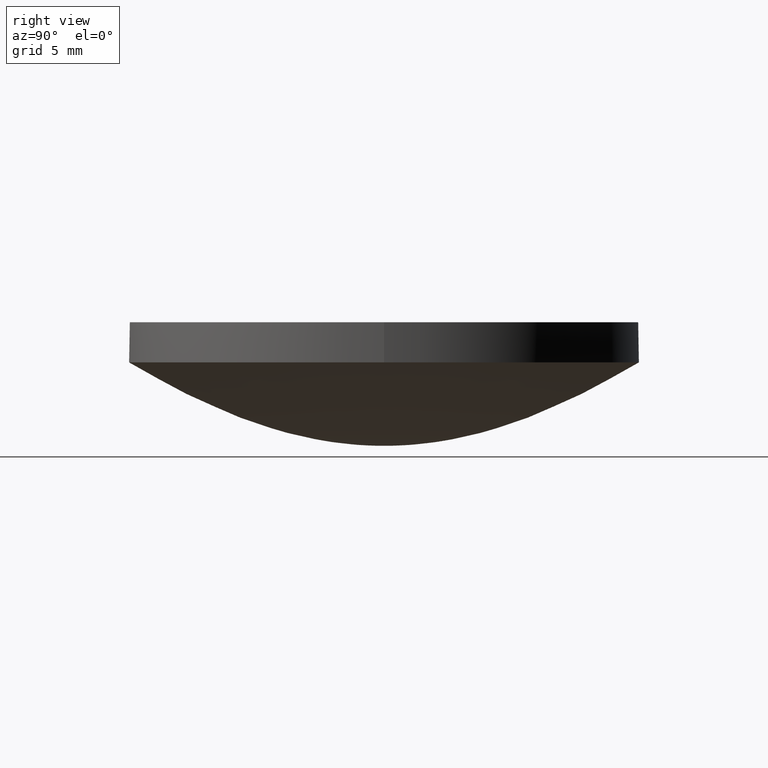
[diagram: clean part render]
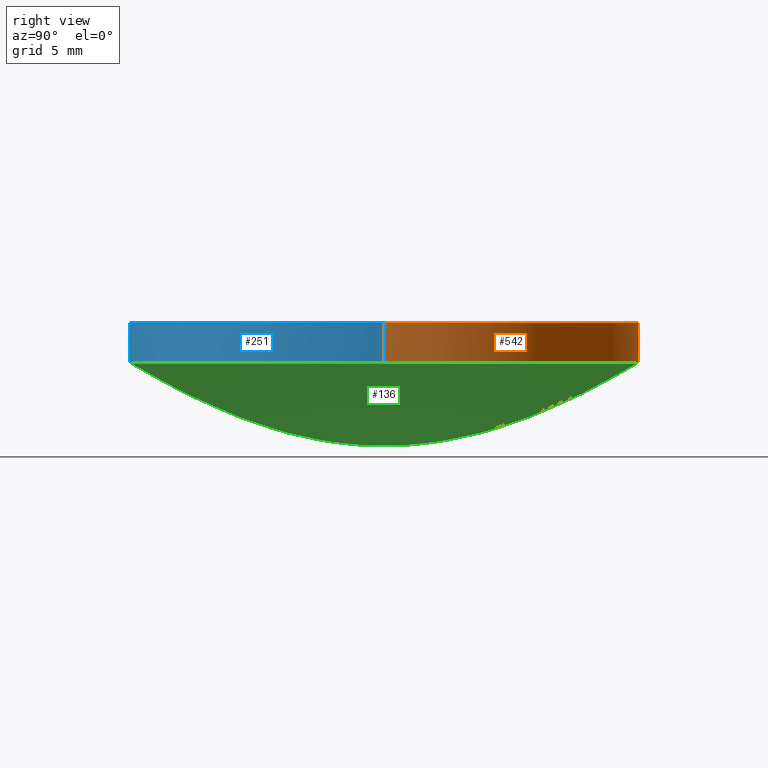
[diagram: same view with three faces highlighted in distinct colors, each labeled with its STEP entity id]
A machine part, right view with three faces highlighted in distinct colors.
Their STEP definitions:

[orange] entity #542 — the highlighted cylindrical surface (partial cylindrical patch) has radius 12.7 mm, axis along (0, 0, 1).
#9 = VECTOR ( 'NONE', #216, 1000.000000000000000 ) ;
#10 = ORIENTED_EDGE ( 'NONE', *, *, #486, .F. ) ;
#12 = DIRECTION ( 'NONE',  ( -1.000000000000000000, 0.000000000000000000, 0.000000000000000000 ) ) ;
#15 = CARTESIAN_POINT ( 'NONE',  ( 1.734723475976807094E-15, -1.345898117247522881E-15, 4.156662013466060124 ) ) ;
#36 = CIRCLE ( 'NONE', #268, 12.70000000000000284 ) ;
#46 = LINE ( 'NONE', #50, #9 ) ;
#49 = CARTESIAN_POINT ( 'NONE',  ( 1.028282480094215200E-15, -8.881784197001250351E-16, 6.159999999999999254 ) ) ;
#50 = CARTESIAN_POINT ( 'NONE',  ( -12.69999999999999751, 6.671230152170134961E-16, 4.156662013466061012 ) ) ;
#51 = CARTESIAN_POINT ( 'NONE',  ( -12.69999999999999751, 6.671230152170134961E-16, 6.160000000000000142 ) ) ;
#54 = AXIS2_PLACEMENT_3D ( 'NONE', #397, #255, #344 ) ;
#79 = VERTEX_POINT ( 'NONE', #51 ) ;
#94 = CARTESIAN_POINT ( 'NONE',  ( 12.70000000000000107, -8.881784197001250351E-16, 4.156662013466059236 ) ) ;
#138 = DIRECTION ( 'NONE',  ( -0.000000000000000000, -0.000000000000000000, -1.000000000000000000 ) ) ;
#165 = ORIENTED_EDGE ( 'NONE', *, *, #462, .T. ) ;
#170 = CARTESIAN_POINT ( 'NONE',  ( -12.70000000000000107, 6.671230152170136933E-16, 4.156662013466060124 ) ) ;
#174 = AXIS2_PLACEMENT_3D ( 'NONE', #15, #387, #258 ) ;
#175 = CARTESIAN_POINT ( 'NONE',  ( -3.851859888774471706E-31, 12.70000000000000284, 4.156662013466060124 ) ) ;
#179 = ORIENTED_EDGE ( 'NONE', *, *, #394, .F. ) ;
#213 = FACE_OUTER_BOUND ( 'NONE', #441, .T. ) ;
#216 = DIRECTION ( 'NONE',  ( 6.993530863780509846E-17, 4.890947394265059749E-33, 1.000000000000000000 ) ) ;
#255 = DIRECTION ( 'NONE',  ( 6.993530863780509846E-17, 4.890947394265059749E-33, 1.000000000000000000 ) ) ;
#258 = DIRECTION ( 'NONE',  ( -1.000000000000000000, 0.000000000000000000, 0.000000000000000000 ) ) ;
#262 = VERTEX_POINT ( 'NONE', #170 ) ;
#265 = ORIENTED_EDGE ( 'NONE', *, *, #516, .T. ) ;
#267 = DIRECTION ( 'NONE',  ( -6.993530863780509846E-17, -4.890947394265059749E-33, -1.000000000000000000 ) ) ;
#268 = AXIS2_PLACEMENT_3D ( 'NONE', #353, #138, #12 ) ;
#272 = VERTEX_POINT ( 'NONE', #309 ) ;
#296 = CIRCLE ( 'NONE', #174, 12.70000000000000284 ) ;
#309 = CARTESIAN_POINT ( 'NONE',  ( 12.70000000000000107, -8.881784197001250351E-16, 6.159999999999998366 ) ) ;
#319 = ORIENTED_EDGE ( 'NONE', *, *, #410, .F. ) ;
#344 = DIRECTION ( 'NONE',  ( 1.000000000000000000, 0.000000000000000000, -6.829619984160658046E-17 ) ) ;
#351 = AXIS2_PLACEMENT_3D ( 'NONE', #49, #267, #509 ) ;
#353 = CARTESIAN_POINT ( 'NONE',  ( 1.734723475976807094E-15, -1.345898117247522881E-15, 4.156662013466060124 ) ) ;
#387 = DIRECTION ( 'NONE',  ( -0.000000000000000000, -0.000000000000000000, -1.000000000000000000 ) ) ;
#392 = VECTOR ( 'NONE', #440, 1000.000000000000000 ) ;
#394 = EDGE_CURVE ( 'NONE', #262, #468, #36, .T. ) ;
#397 = CARTESIAN_POINT ( 'NONE',  ( 8.881784197001250351E-16, -8.881784197001250351E-16, 4.156662013466060124 ) ) ;
#410 = EDGE_CURVE ( 'NONE', #468, #437, #296, .T. ) ;
#430 = CARTESIAN_POINT ( 'NONE',  ( 12.70000000000000462, -8.881784197001248379E-16, 4.156662013466060124 ) ) ;
#435 = CYLINDRICAL_SURFACE ( 'NONE', #54, 12.69999999999999929 ) ;
#437 = VERTEX_POINT ( 'NONE', #430 ) ;
#440 = DIRECTION ( 'NONE',  ( 6.993530863780509846E-17, 4.890947394265059749E-33, 1.000000000000000000 ) ) ;
#441 = EDGE_LOOP ( 'NONE', ( #179, #165, #265, #10, #319 ) ) ;
#462 = EDGE_CURVE ( 'NONE', #262, #79, #46, .T. ) ;
#464 = CIRCLE ( 'NONE', #351, 12.69999999999999929 ) ;
#468 = VERTEX_POINT ( 'NONE', #175 ) ;
#479 = LINE ( 'NONE', #94, #392 ) ;
#486 = EDGE_CURVE ( 'NONE', #437, #272, #479, .T. ) ;
#509 = DIRECTION ( 'NONE',  ( 1.000000000000000000, 0.000000000000000000, -6.829619984160658046E-17 ) ) ;
#516 = EDGE_CURVE ( 'NONE', #79, #272, #464, .T. ) ;
#542 = ADVANCED_FACE ( 'NONE', ( #213 ), #435, .T. ) ;

[blue] entity #251 — the highlighted cylindrical surface (partial cylindrical patch) has radius 12.7 mm, axis along (0, 0, 1).
#3 = ORIENTED_EDGE ( 'NONE', *, *, #452, .F. ) ;
#8 = DIRECTION ( 'NONE',  ( -6.993530863780509846E-17, -4.890947394265059749E-33, -1.000000000000000000 ) ) ;
#9 = VECTOR ( 'NONE', #216, 1000.000000000000000 ) ;
#46 = LINE ( 'NONE', #50, #9 ) ;
#50 = CARTESIAN_POINT ( 'NONE',  ( -12.69999999999999751, 6.671230152170134961E-16, 4.156662013466061012 ) ) ;
#51 = CARTESIAN_POINT ( 'NONE',  ( -12.69999999999999751, 6.671230152170134961E-16, 6.160000000000000142 ) ) ;
#58 = DIRECTION ( 'NONE',  ( 6.993530863780509846E-17, 4.890947394265059749E-33, 1.000000000000000000 ) ) ;
#79 = VERTEX_POINT ( 'NONE', #51 ) ;
#80 = AXIS2_PLACEMENT_3D ( 'NONE', #135, #513, #521 ) ;
#90 = ORIENTED_EDGE ( 'NONE', *, *, #152, .T. ) ;
#92 = CARTESIAN_POINT ( 'NONE',  ( 1.734723475976807094E-15, -1.345898117247522881E-15, 4.156662013466060124 ) ) ;
#94 = CARTESIAN_POINT ( 'NONE',  ( 12.70000000000000107, -8.881784197001250351E-16, 4.156662013466059236 ) ) ;
#124 = VERTEX_POINT ( 'NONE', #130 ) ;
#130 = CARTESIAN_POINT ( 'NONE',  ( -1.555301434917141588E-15, -12.70000000000000462, 4.156662013466060124 ) ) ;
#132 = DIRECTION ( 'NONE',  ( 1.000000000000000000, 0.000000000000000000, -6.829619984160658046E-17 ) ) ;
#133 = ORIENTED_EDGE ( 'NONE', *, *, #486, .T. ) ;
#135 = CARTESIAN_POINT ( 'NONE',  ( 1.734723475976807094E-15, -1.345898117247522881E-15, 4.156662013466060124 ) ) ;
#140 = FACE_OUTER_BOUND ( 'NONE', #443, .T. ) ;
#152 = EDGE_CURVE ( 'NONE', #272, #79, #419, .T. ) ;
#170 = CARTESIAN_POINT ( 'NONE',  ( -12.70000000000000107, 6.671230152170136933E-16, 4.156662013466060124 ) ) ;
#195 = AXIS2_PLACEMENT_3D ( 'NONE', #347, #8, #303 ) ;
#214 = CYLINDRICAL_SURFACE ( 'NONE', #368, 12.69999999999999929 ) ;
#216 = DIRECTION ( 'NONE',  ( 6.993530863780509846E-17, 4.890947394265059749E-33, 1.000000000000000000 ) ) ;
#251 = ADVANCED_FACE ( 'NONE', ( #140 ), #214, .T. ) ;
#262 = VERTEX_POINT ( 'NONE', #170 ) ;
#272 = VERTEX_POINT ( 'NONE', #309 ) ;
#295 = ORIENTED_EDGE ( 'NONE', *, *, #315, .F. ) ;
#303 = DIRECTION ( 'NONE',  ( 1.000000000000000000, 0.000000000000000000, -6.829619984160658046E-17 ) ) ;
#309 = CARTESIAN_POINT ( 'NONE',  ( 12.70000000000000107, -8.881784197001250351E-16, 6.159999999999998366 ) ) ;
#315 = EDGE_CURVE ( 'NONE', #124, #262, #326, .T. ) ;
#326 = CIRCLE ( 'NONE', #507, 12.70000000000000284 ) ;
#347 = CARTESIAN_POINT ( 'NONE',  ( 1.028282480094215200E-15, -8.881784197001250351E-16, 6.159999999999999254 ) ) ;
#358 = ORIENTED_EDGE ( 'NONE', *, *, #462, .F. ) ;
#368 = AXIS2_PLACEMENT_3D ( 'NONE', #476, #58, #132 ) ;
#392 = VECTOR ( 'NONE', #440, 1000.000000000000000 ) ;
#395 = DIRECTION ( 'NONE',  ( -1.000000000000000000, 0.000000000000000000, 0.000000000000000000 ) ) ;
#419 = CIRCLE ( 'NONE', #195, 12.69999999999999929 ) ;
#430 = CARTESIAN_POINT ( 'NONE',  ( 12.70000000000000462, -8.881784197001248379E-16, 4.156662013466060124 ) ) ;
#432 = DIRECTION ( 'NONE',  ( -0.000000000000000000, -0.000000000000000000, -1.000000000000000000 ) ) ;
#437 = VERTEX_POINT ( 'NONE', #430 ) ;
#438 = CIRCLE ( 'NONE', #80, 12.70000000000000284 ) ;
#440 = DIRECTION ( 'NONE',  ( 6.993530863780509846E-17, 4.890947394265059749E-33, 1.000000000000000000 ) ) ;
#443 = EDGE_LOOP ( 'NONE', ( #358, #295, #3, #133, #90 ) ) ;
#452 = EDGE_CURVE ( 'NONE', #437, #124, #438, .T. ) ;
#462 = EDGE_CURVE ( 'NONE', #262, #79, #46, .T. ) ;
#476 = CARTESIAN_POINT ( 'NONE',  ( 8.881784197001250351E-16, -8.881784197001250351E-16, 4.156662013466060124 ) ) ;
#479 = LINE ( 'NONE', #94, #392 ) ;
#486 = EDGE_CURVE ( 'NONE', #437, #272, #479, .T. ) ;
#507 = AXIS2_PLACEMENT_3D ( 'NONE', #92, #432, #395 ) ;
#513 = DIRECTION ( 'NONE',  ( -0.000000000000000000, -0.000000000000000000, -1.000000000000000000 ) ) ;
#521 = DIRECTION ( 'NONE',  ( -1.000000000000000000, 0.000000000000000000, 0.000000000000000000 ) ) ;

[green] entity #136 — the highlighted face is a freeform B-spline surface patch.
#6 = CARTESIAN_POINT ( 'NONE',  ( 0.000000000000000000, 8.299898597019639723, 1.861882940411679899 ) ) ;
#13 = CARTESIAN_POINT ( 'NONE',  ( 12.00588458405300152, -12.00588458405300152, 3.743064987588899939 ) ) ;
#15 = CARTESIAN_POINT ( 'NONE',  ( 1.734723475976807094E-15, -1.345898117247522881E-15, 4.156662013466060124 ) ) ;
#16 = CARTESIAN_POINT ( 'NONE',  ( 0.000000000000000000, 1.856001890975160107, 0.08818766913166510568 ) ) ;
#18 = CARTESIAN_POINT ( 'NONE',  ( -6.006328210829880554, 6.006328210829880554, 0.9889388138680190732 ) ) ;
#20 = CARTESIAN_POINT ( 'NONE',  ( -7.594569092104751284, -7.594569092104739738, 1.566951937993940058 ) ) ;
#22 = CARTESIAN_POINT ( 'NONE',  ( 0.000000000000000000, 11.12995440244699985, 3.246620217075189885 ) ) ;
#27 = CARTESIAN_POINT ( 'NONE',  ( 8.299898597019639723, -1.524666637513159972E-15, 1.861882940411679899 ) ) ;
#29 = B_SPLINE_CURVE_WITH_KNOTS ( 'NONE', 3,
 ( #217, #391, #61, #474, #229, #6, #225, #259, #354, #431, #55, #168, #348, #16, #183, #222, #512 ),
 .UNSPECIFIED., .F., .F.,
 ( 4, 1, 1, 1, 1, 1, 1, 1, 1, 1, 1, 1, 1, 1, 4 ),
 ( 0.000000000000000000, 0.1791640992132879917, 0.2231798939688300065, 0.3101165522484389814, 0.3530374157725050255, 0.4378003480766050060, 0.4796424168566389978, 0.5623418750578970116, 0.6031992644791219771, 0.6840973856314990220, 0.7241381173626499912, 0.8036349153197349660, 0.8430909815456679723, 0.9412735238857999898, 1.000000000000000000 ),
 .UNSPECIFIED. ) ;
#30 = CARTESIAN_POINT ( 'NONE',  ( 9.182068142219090845, 9.182068142219090845, 2.261185621592610051 ) ) ;
#32 = CARTESIAN_POINT ( 'NONE',  ( 4.417324537593410483, 4.417324537593410483, 0.5366860796835699610 ) ) ;
#35 = CARTESIAN_POINT ( 'NONE',  ( -0.9732602550666410446, 5.959500280523489629E-17, 0.01582297156970259924 ) ) ;
#38 = CARTESIAN_POINT ( 'NONE',  ( 0.2648454722978469955, -0.2648454722978469955, 0.000000000000000000 ) ) ;
#40 = CARTESIAN_POINT ( 'NONE',  ( 0.000000000000000000, 3.533643029350660214, 0.3426028526766399795 ) ) ;
#42 = CARTESIAN_POINT ( 'NONE',  ( 0.9732602550666409336, -0.9732602550666409336, 0.01582297156970260271 ) ) ;
#44 = CARTESIAN_POINT ( 'NONE',  ( -1.210831606775240060E-15, -9.887190393330319793, 2.604185921054619879 ) ) ;
#48 = CARTESIAN_POINT ( 'NONE',  ( -12.69999999999999929, 12.69999999999999929, 4.156662013466060124 ) ) ;
#52 =( BOUNDED_SURFACE ( )  B_SPLINE_SURFACE ( 3, 2, ( 
 ( #141, #48, #215, #388, #171, #307, #350, #518, #520 ),
 ( #514, #95, #137, #310, #396, #13, #139, #313, #481 ),
 ( #412, #285, #241, #451, #282, #402, #275, #72, #22 ),
 ( #191, #194, #331, #372, #287, #455, #69, #324, #534 ),
 ( #154, #488, #104, #496, #530, #116, #113, #30, #493 ),
 ( #360, #446, #64, #328, #233, #406, #27, #197, #239 ),
 ( #525, #457, #66, #20, #74, #490, #409, #189, #110 ),
 ( #236, #144, #370, #498, #366, #333, #532, #146, #151 ),
 ( #400, #18, #149, #362, #187, #321, #528, #107, #279 ),
 ( #448, #118, #422, #289, #78, #159, #120, #545, #536 ),
 ( #245, #508, #157, #247, #500, #123, #345, #32, #126 ),
 ( #40, #459, #164, #420, #82, #465, #510, #291, #299 ),
 ( #338, #200, #76, #471, #540, #210, #243, #207, #416 ),
 ( #128, #336, #414, #374, #301, #424, #85, #250, #467 ),
 ( #293, #253, #35, #202, #205, #42, #543, #503, #376 ),
 ( #461, #343, #380, #166, #538, #38, #378, #162, #382 ),
 ( #340, #505, #86, #256, #261, #427, #398, #178, #355 ) ),
 .UNSPECIFIED., .F., .T., .F. ) 
 B_SPLINE_SURFACE_WITH_KNOTS ( ( 4, 1, 1, 1, 1, 1, 1, 1, 1, 1, 1, 1, 1, 1, 4 ),
 ( 3, 2, 2, 2, 3 ),
 ( 0.000000000000000000, 0.1791640992132879917, 0.2231798939688300065, 0.3101165522484389814, 0.3530374157725050255, 0.4378003480766050060, 0.4796424168566389978, 0.5623418750578970116, 0.6031992644791219771, 0.6840973856314990220, 0.7241381173626499912, 0.8036349153197349660, 0.8430909815456679723, 0.9412735238857999898, 1.000000000000000000 ),
 ( 0.000000000000000000, 90.00000000000000000, 180.0000000000000000, 270.0000000000000000, 360.0000000000000000 ),
 .UNSPECIFIED. ) 
 GEOMETRIC_REPRESENTATION_ITEM ( )  RATIONAL_B_SPLINE_SURFACE ( (
 ( 1.000000000000000000, 0.7071067811865480168, 1.000000000000000000, 0.7071067811865480168, 1.000000000000000000, 0.7071067811865480168, 1.000000000000000000, 0.7071067811865480168, 1.000000000000000000),
 ( 1.000000000000000000, 0.7071067811865480168, 1.000000000000000000, 0.7071067811865480168, 1.000000000000000000, 0.7071067811865480168, 1.000000000000000000, 0.7071067811865480168, 1.000000000000000000),
 ( 1.000000000000000000, 0.7071067811865480168, 1.000000000000000000, 0.7071067811865480168, 1.000000000000000000, 0.7071067811865480168, 1.000000000000000000, 0.7071067811865480168, 1.000000000000000000),
 ( 1.000000000000000000, 0.7071067811865480168, 1.000000000000000000, 0.7071067811865480168, 1.000000000000000000, 0.7071067811865480168, 1.000000000000000000, 0.7071067811865480168, 1.000000000000000000),
 ( 1.000000000000000000, 0.7071067811865480168, 1.000000000000000000, 0.7071067811865480168, 1.000000000000000000, 0.7071067811865480168, 1.000000000000000000, 0.7071067811865480168, 1.000000000000000000),
 ( 1.000000000000000000, 0.7071067811865480168, 1.000000000000000000, 0.7071067811865480168, 1.000000000000000000, 0.7071067811865480168, 1.000000000000000000, 0.7071067811865480168, 1.000000000000000000),
 ( 1.000000000000000000, 0.7071067811865480168, 1.000000000000000000, 0.7071067811865480168, 1.000000000000000000, 0.7071067811865480168, 1.000000000000000000, 0.7071067811865480168, 1.000000000000000000),
 ( 1.000000000000000000, 0.7071067811865480168, 1.000000000000000000, 0.7071067811865480168, 1.000000000000000000, 0.7071067811865480168, 1.000000000000000000, 0.7071067811865480168, 1.000000000000000000),
 ( 1.000000000000000000, 0.7071067811865480168, 1.000000000000000000, 0.7071067811865480168, 1.000000000000000000, 0.7071067811865480168, 1.000000000000000000, 0.7071067811865480168, 1.000000000000000000),
 ( 1.000000000000000000, 0.7071067811865480168, 1.000000000000000000, 0.7071067811865480168, 1.000000000000000000, 0.7071067811865480168, 1.000000000000000000, 0.7071067811865480168, 1.000000000000000000),
 ( 1.000000000000000000, 0.7071067811865480168, 1.000000000000000000, 0.7071067811865480168, 1.000000000000000000, 0.7071067811865480168, 1.000000000000000000, 0.7071067811865480168, 1.000000000000000000),
 ( 1.000000000000000000, 0.7071067811865480168, 1.000000000000000000, 0.7071067811865480168, 1.000000000000000000, 0.7071067811865480168, 1.000000000000000000, 0.7071067811865480168, 1.000000000000000000),
 ( 1.000000000000000000, 0.7071067811865480168, 1.000000000000000000, 0.7071067811865480168, 1.000000000000000000, 0.7071067811865480168, 1.000000000000000000, 0.7071067811865480168, 1.000000000000000000),
 ( 1.000000000000000000, 0.7071067811865480168, 1.000000000000000000, 0.7071067811865480168, 1.000000000000000000, 0.7071067811865480168, 1.000000000000000000, 0.7071067811865480168, 1.000000000000000000),
 ( 1.000000000000000000, 0.7071067811865480168, 1.000000000000000000, 0.7071067811865480168, 1.000000000000000000, 0.7071067811865480168, 1.000000000000000000, 0.7071067811865480168, 1.000000000000000000),
 ( 1.000000000000000000, 0.7071067811865480168, 1.000000000000000000, 0.7071067811865480168, 1.000000000000000000, 0.7071067811865480168, 1.000000000000000000, 0.7071067811865480168, 1.000000000000000000),
 ( 1.000000000000000000, 0.7071067811865480168, 1.000000000000000000, 0.7071067811865480168, 1.000000000000000000, 0.7071067811865480168, 1.000000000000000000, 0.7071067811865480168, 1.000000000000000000) ) ) 
 REPRESENTATION_ITEM ( '' )  SURFACE ( )  );
#55 = CARTESIAN_POINT ( 'NONE',  ( 0.000000000000000000, 4.417324537593409595, 0.5366860796835699610 ) ) ;
#61 = CARTESIAN_POINT ( 'NONE',  ( 0.000000000000000000, 11.12995440244699985, 3.246620217075189885 ) ) ;
#64 = CARTESIAN_POINT ( 'NONE',  ( -8.299898597019639723, 5.082222125043859669E-16, 1.861882940411679899 ) ) ;
#66 = CARTESIAN_POINT ( 'NONE',  ( -7.594569092104750396, 4.650332364774750375E-16, 1.566951937993940058 ) ) ;
#69 = CARTESIAN_POINT ( 'NONE',  ( 9.887190393330319793, -1.816247410162870148E-15, 2.604185921054619879 ) ) ;
#72 = CARTESIAN_POINT ( 'NONE',  ( 11.12995440244710110, 11.12995440244699985, 3.246620217075190773 ) ) ;
#74 = CARTESIAN_POINT ( 'NONE',  ( -9.300664729549500750E-16, -7.594569092104750396, 1.566951937993940058 ) ) ;
#76 = CARTESIAN_POINT ( 'NONE',  ( -2.827615954408219778, 1.731415413892010225E-16, 0.2175848550245449986 ) ) ;
#78 = CARTESIAN_POINT ( 'NONE',  ( -6.274022469804369679E-16, -5.123128133085059766, 0.7216723207957019826 ) ) ;
#80 = AXIS2_PLACEMENT_3D ( 'NONE', #135, #513, #521 ) ;
#82 = CARTESIAN_POINT ( 'NONE',  ( -4.327464625223639869E-16, -3.533643029350660214, 0.3426028526766399795 ) ) ;
#83 = VERTEX_POINT ( 'NONE', #523 ) ;
#85 = CARTESIAN_POINT ( 'NONE',  ( 1.856001890975160107, -3.409420162491239760E-16, 0.08818766913166510568 ) ) ;
#86 = CARTESIAN_POINT ( 'NONE',  ( 0.000000000000000000, 0.000000000000000000, 0.000000000000000000 ) ) ;
#89 = CARTESIAN_POINT ( 'NONE',  ( 0.000000000000000000, 0.000000000000000000, 0.000000000000000000 ) ) ;
#93 = ORIENTED_EDGE ( 'NONE', *, *, #452, .T. ) ;
#95 = CARTESIAN_POINT ( 'NONE',  ( -12.00588458405300152, 12.00588458405300152, 3.743064987588899939 ) ) ;
#99 = FACE_OUTER_BOUND ( 'NONE', #356, .T. ) ;
#104 = CARTESIAN_POINT ( 'NONE',  ( -9.182068142219090845, 5.622395179960750118E-16, 2.261185621592610051 ) ) ;
#107 = CARTESIAN_POINT ( 'NONE',  ( 6.006328210829880554, 6.006328210829870784, 0.9889388138680190732 ) ) ;
#110 = CARTESIAN_POINT ( 'NONE',  ( 0.000000000000000000, 7.594569092104750396, 1.566951937993940058 ) ) ;
#113 = CARTESIAN_POINT ( 'NONE',  ( 9.182068142219090845, -1.686718553988220006E-15, 2.261185621592610051 ) ) ;
#114 = EDGE_CURVE ( 'NONE', #468, #83, #29, .T. ) ;
#116 = CARTESIAN_POINT ( 'NONE',  ( 9.182068142219090845, -9.182068142219090845, 2.261185621592610051 ) ) ;
#118 = CARTESIAN_POINT ( 'NONE',  ( -5.123128133085059766, 5.123128133085059766, 0.7216723207957019826 ) ) ;
#120 = CARTESIAN_POINT ( 'NONE',  ( 5.123128133085059766, -9.411033704706559450E-16, 0.7216723207957019826 ) ) ;
#123 = CARTESIAN_POINT ( 'NONE',  ( 4.417324537593410483, -4.417324537593410483, 0.5366860796835699610 ) ) ;
#124 = VERTEX_POINT ( 'NONE', #130 ) ;
#126 = CARTESIAN_POINT ( 'NONE',  ( 0.000000000000000000, 4.417324537593409595, 0.5366860796835699610 ) ) ;
#128 = CARTESIAN_POINT ( 'NONE',  ( 0.000000000000000000, 1.856001890975160107, 0.08818766913166510568 ) ) ;
#129 = CARTESIAN_POINT ( 'NONE',  ( -3.243421599182280136E-17, -0.2648454722978469955, 0.000000000000000000 ) ) ;
#130 = CARTESIAN_POINT ( 'NONE',  ( -1.555301434917141588E-15, -12.70000000000000462, 4.156662013466060124 ) ) ;
#135 = CARTESIAN_POINT ( 'NONE',  ( 1.734723475976807094E-15, -1.345898117247522881E-15, 4.156662013466060124 ) ) ;
#136 = ADVANCED_FACE ( 'NONE', ( #99 ), #52, .T. ) ;
#137 = CARTESIAN_POINT ( 'NONE',  ( -12.00588458405299974, 7.351484063396529724E-16, 3.743064987588899939 ) ) ;
#139 = CARTESIAN_POINT ( 'NONE',  ( 12.00588458405299974, -2.205445219018960396E-15, 3.743064987588899939 ) ) ;
#141 = CARTESIAN_POINT ( 'NONE',  ( 0.000000000000000000, 12.69999999999999929, 4.156662013466060124 ) ) ;
#144 = CARTESIAN_POINT ( 'NONE',  ( -6.711891333844019591, 6.711891333844019591, 1.230882758733029991 ) ) ;
#146 = CARTESIAN_POINT ( 'NONE',  ( 6.711891333844019591, 6.711891333844019591, 1.230882758733029991 ) ) ;
#149 = CARTESIAN_POINT ( 'NONE',  ( -6.006328210829879666, 3.677815309010630601E-16, 0.9889388138680189622 ) ) ;
#151 = CARTESIAN_POINT ( 'NONE',  ( 0.000000000000000000, 6.711891333844019591, 1.230882758733029991 ) ) ;
#154 = CARTESIAN_POINT ( 'NONE',  ( 0.000000000000000000, 9.182068142219090845, 2.261185621592610051 ) ) ;
#157 = CARTESIAN_POINT ( 'NONE',  ( -4.417324537593409595, 2.704831177879420105E-16, 0.5366860796835699610 ) ) ;
#159 = CARTESIAN_POINT ( 'NONE',  ( 5.123128133085059766, -5.123128133085059766, 0.7216723207957019826 ) ) ;
#162 = CARTESIAN_POINT ( 'NONE',  ( 0.2648454722978469955, 0.2648454722978469955, 0.000000000000000000 ) ) ;
#164 = CARTESIAN_POINT ( 'NONE',  ( -3.533643029350660214, 2.163732312611819934E-16, 0.3426028526766399795 ) ) ;
#166 = CARTESIAN_POINT ( 'NONE',  ( -0.2648454722978469955, -0.2648454722978469955, 0.000000000000000000 ) ) ;
#167 = CARTESIAN_POINT ( 'NONE',  ( -2.272946774994159840E-16, -1.856001890975160107, 0.08818766913166510568 ) ) ;
#168 = CARTESIAN_POINT ( 'NONE',  ( 0.000000000000000000, 3.533643029350660214, 0.3426028526766399795 ) ) ;
#171 = CARTESIAN_POINT ( 'NONE',  ( -1.555301434917140010E-15, -12.69999999999999929, 4.156662013466060124 ) ) ;
#174 = AXIS2_PLACEMENT_3D ( 'NONE', #15, #387, #258 ) ;
#175 = CARTESIAN_POINT ( 'NONE',  ( -3.851859888774471706E-31, 12.70000000000000284, 4.156662013466060124 ) ) ;
#176 = ORIENTED_EDGE ( 'NONE', *, *, #403, .T. ) ;
#178 = CARTESIAN_POINT ( 'NONE',  ( 0.000000000000000000, 0.000000000000000000, 0.000000000000000000 ) ) ;
#183 = CARTESIAN_POINT ( 'NONE',  ( 0.000000000000000000, 0.9732602550666410446, 0.01582297156970259924 ) ) ;
#187 = CARTESIAN_POINT ( 'NONE',  ( -7.355630618021261203E-16, -6.006328210829879666, 0.9889388138680189622 ) ) ;
#189 = CARTESIAN_POINT ( 'NONE',  ( 7.594569092104751284, 7.594569092104739738, 1.566951937993940058 ) ) ;
#191 = CARTESIAN_POINT ( 'NONE',  ( 0.000000000000000000, 9.887190393330319793, 2.604185921054619879 ) ) ;
#194 = CARTESIAN_POINT ( 'NONE',  ( -9.887190393330319793, 9.887190393330319793, 2.604185921054619879 ) ) ;
#197 = CARTESIAN_POINT ( 'NONE',  ( 8.299898597019639723, 8.299898597019639723, 1.861882940411679899 ) ) ;
#200 = CARTESIAN_POINT ( 'NONE',  ( -2.827615954408220222, 2.827615954408220222, 0.2175848550245449986 ) ) ;
#202 = CARTESIAN_POINT ( 'NONE',  ( -0.9732602550666409336, -0.9732602550666409336, 0.01582297156970260271 ) ) ;
#205 = CARTESIAN_POINT ( 'NONE',  ( -1.191900056104700145E-16, -0.9732602550666410446, 0.01582297156970259924 ) ) ;
#207 = CARTESIAN_POINT ( 'NONE',  ( 2.827615954408220222, 2.827615954408220222, 0.2175848550245449986 ) ) ;
#210 = CARTESIAN_POINT ( 'NONE',  ( 2.827615954408220222, -2.827615954408220222, 0.2175848550245449986 ) ) ;
#212 = CARTESIAN_POINT ( 'NONE',  ( -7.355630618021261203E-16, -6.006328210829879666, 0.9889388138680189622 ) ) ;
#215 = CARTESIAN_POINT ( 'NONE',  ( -12.69999999999999929, 7.776507174585690191E-16, 4.156662013466060124 ) ) ;
#217 = CARTESIAN_POINT ( 'NONE',  ( -3.851859888774471706E-31, 12.70000000000000284, 4.156662013466060124 ) ) ;
#222 = CARTESIAN_POINT ( 'NONE',  ( 0.000000000000000000, 0.2648454722978469955, 0.000000000000000000 ) ) ;
#224 = CARTESIAN_POINT ( 'NONE',  ( -8.219696238216940375E-16, -6.711891333844019591, 1.230882758733029991 ) ) ;
#225 = CARTESIAN_POINT ( 'NONE',  ( 0.000000000000000000, 7.594569092104750396, 1.566951937993940058 ) ) ;
#226 = B_SPLINE_CURVE_WITH_KNOTS ( 'NONE', 3,
 ( #519, #480, #349, #44, #473, #317, #390, #224, #212, #436, #511, #312, #357, #167, #385, #129, #89 ),
 .UNSPECIFIED., .F., .F.,
 ( 4, 1, 1, 1, 1, 1, 1, 1, 1, 1, 1, 1, 1, 1, 4 ),
 ( 0.000000000000000000, 0.1791640992132879917, 0.2231798939688300065, 0.3101165522484389814, 0.3530374157725050255, 0.4378003480766050060, 0.4796424168566389978, 0.5623418750578970116, 0.6031992644791219771, 0.6840973856314990220, 0.7241381173626499912, 0.8036349153197349660, 0.8430909815456679723, 0.9412735238857999898, 1.000000000000000000 ),
 .UNSPECIFIED. ) ;
#229 = CARTESIAN_POINT ( 'NONE',  ( 0.000000000000000000, 9.182068142219090845, 2.261185621592610051 ) ) ;
#233 = CARTESIAN_POINT ( 'NONE',  ( -1.016444425008770159E-15, -8.299898597019639723, 1.861882940411679899 ) ) ;
#236 = CARTESIAN_POINT ( 'NONE',  ( 0.000000000000000000, 6.711891333844019591, 1.230882758733029991 ) ) ;
#239 = CARTESIAN_POINT ( 'NONE',  ( 0.000000000000000000, 8.299898597019639723, 1.861882940411679899 ) ) ;
#241 = CARTESIAN_POINT ( 'NONE',  ( -11.12995440244699985, 6.815131516806389996E-16, 3.246620217075189885 ) ) ;
#243 = CARTESIAN_POINT ( 'NONE',  ( 2.827615954408219778, -5.194246241676019827E-16, 0.2175848550245449986 ) ) ;
#245 = CARTESIAN_POINT ( 'NONE',  ( 0.000000000000000000, 4.417324537593409595, 0.5366860796835699610 ) ) ;
#247 = CARTESIAN_POINT ( 'NONE',  ( -4.417324537593410483, -4.417324537593410483, 0.5366860796835699610 ) ) ;
#250 = CARTESIAN_POINT ( 'NONE',  ( 1.856001890975160107, 1.856001890975160107, 0.08818766913166510568 ) ) ;
#253 = CARTESIAN_POINT ( 'NONE',  ( -0.9732602550666409336, 0.9732602550666409336, 0.01582297156970260271 ) ) ;
#256 = CARTESIAN_POINT ( 'NONE',  ( 0.000000000000000000, 0.000000000000000000, 0.000000000000000000 ) ) ;
#258 = DIRECTION ( 'NONE',  ( -1.000000000000000000, 0.000000000000000000, 0.000000000000000000 ) ) ;
#259 = CARTESIAN_POINT ( 'NONE',  ( 0.000000000000000000, 6.711891333844019591, 1.230882758733029991 ) ) ;
#261 = CARTESIAN_POINT ( 'NONE',  ( 0.000000000000000000, 0.000000000000000000, 0.000000000000000000 ) ) ;
#275 = CARTESIAN_POINT ( 'NONE',  ( 11.12995440244699985, -2.044539455041920056E-15, 3.246620217075189885 ) ) ;
#279 = CARTESIAN_POINT ( 'NONE',  ( 0.000000000000000000, 6.006328210829879666, 0.9889388138680189622 ) ) ;
#282 = CARTESIAN_POINT ( 'NONE',  ( -1.363026303361279971E-15, -11.12995440244699985, 3.246620217075189885 ) ) ;
#285 = CARTESIAN_POINT ( 'NONE',  ( -11.12995440244699985, 11.12995440244699985, 3.246620217075190773 ) ) ;
#287 = CARTESIAN_POINT ( 'NONE',  ( -1.210831606775240060E-15, -9.887190393330319793, 2.604185921054619879 ) ) ;
#289 = CARTESIAN_POINT ( 'NONE',  ( -5.123128133085059766, -5.123128133085059766, 0.7216723207957019826 ) ) ;
#291 = CARTESIAN_POINT ( 'NONE',  ( 3.533643029350660214, 3.533643029350660214, 0.3426028526766399240 ) ) ;
#293 = CARTESIAN_POINT ( 'NONE',  ( 0.000000000000000000, 0.9732602550666410446, 0.01582297156970259924 ) ) ;
#296 = CIRCLE ( 'NONE', #174, 12.70000000000000284 ) ;
#299 = CARTESIAN_POINT ( 'NONE',  ( 0.000000000000000000, 3.533643029350660214, 0.3426028526766399795 ) ) ;
#301 = CARTESIAN_POINT ( 'NONE',  ( -2.272946774994159840E-16, -1.856001890975160107, 0.08818766913166510568 ) ) ;
#304 = ORIENTED_EDGE ( 'NONE', *, *, #410, .T. ) ;
#307 = CARTESIAN_POINT ( 'NONE',  ( 12.69999999999999929, -12.69999999999999929, 4.156662013466060124 ) ) ;
#310 = CARTESIAN_POINT ( 'NONE',  ( -12.00588458405300152, -12.00588458405300152, 3.743064987588899939 ) ) ;
#312 = CARTESIAN_POINT ( 'NONE',  ( -4.327464625223639869E-16, -3.533643029350660214, 0.3426028526766399795 ) ) ;
#313 = CARTESIAN_POINT ( 'NONE',  ( 12.00588458405300152, 12.00588458405300152, 3.743064987588899939 ) ) ;
#317 = CARTESIAN_POINT ( 'NONE',  ( -1.016444425008770159E-15, -8.299898597019639723, 1.861882940411679899 ) ) ;
#321 = CARTESIAN_POINT ( 'NONE',  ( 6.006328210829880554, -6.006328210829880554, 0.9889388138680190732 ) ) ;
#324 = CARTESIAN_POINT ( 'NONE',  ( 9.887190393330330451, 9.887190393330319793, 2.604185921054619879 ) ) ;
#328 = CARTESIAN_POINT ( 'NONE',  ( -8.299898597019639723, -8.299898597019639723, 1.861882940411679899 ) ) ;
#331 = CARTESIAN_POINT ( 'NONE',  ( -9.887190393330319793, 6.054158033876220021E-16, 2.604185921054619879 ) ) ;
#333 = CARTESIAN_POINT ( 'NONE',  ( 6.711891333844019591, -6.711891333844019591, 1.230882758733029991 ) ) ;
#336 = CARTESIAN_POINT ( 'NONE',  ( -1.856001890975160107, 1.856001890975160107, 0.08818766913166510568 ) ) ;
#338 = CARTESIAN_POINT ( 'NONE',  ( 0.000000000000000000, 2.827615954408219778, 0.2175848550245449986 ) ) ;
#340 = CARTESIAN_POINT ( 'NONE',  ( 0.000000000000000000, 0.000000000000000000, 0.000000000000000000 ) ) ;
#341 = ORIENTED_EDGE ( 'NONE', *, *, #114, .F. ) ;
#343 = CARTESIAN_POINT ( 'NONE',  ( -0.2648454722978469955, 0.2648454722978469955, 0.000000000000000000 ) ) ;
#345 = CARTESIAN_POINT ( 'NONE',  ( 4.417324537593409595, -8.114493533638249962E-16, 0.5366860796835699610 ) ) ;
#348 = CARTESIAN_POINT ( 'NONE',  ( 0.000000000000000000, 2.827615954408219778, 0.2175848550245449986 ) ) ;
#349 = CARTESIAN_POINT ( 'NONE',  ( -1.363026303361279971E-15, -11.12995440244699985, 3.246620217075189885 ) ) ;
#350 = CARTESIAN_POINT ( 'NONE',  ( 12.69999999999999929, -2.332952152375710015E-15, 4.156662013466060124 ) ) ;
#354 = CARTESIAN_POINT ( 'NONE',  ( 0.000000000000000000, 6.006328210829879666, 0.9889388138680189622 ) ) ;
#355 = CARTESIAN_POINT ( 'NONE',  ( 0.000000000000000000, 0.000000000000000000, 0.000000000000000000 ) ) ;
#356 = EDGE_LOOP ( 'NONE', ( #93, #176, #341, #304 ) ) ;
#357 = CARTESIAN_POINT ( 'NONE',  ( -3.462830827784010095E-16, -2.827615954408219778, 0.2175848550245449986 ) ) ;
#360 = CARTESIAN_POINT ( 'NONE',  ( 0.000000000000000000, 8.299898597019639723, 1.861882940411679899 ) ) ;
#362 = CARTESIAN_POINT ( 'NONE',  ( -6.006328210829880554, -6.006328210829880554, 0.9889388138680190732 ) ) ;
#366 = CARTESIAN_POINT ( 'NONE',  ( -8.219696238216940375E-16, -6.711891333844019591, 1.230882758733029991 ) ) ;
#370 = CARTESIAN_POINT ( 'NONE',  ( -6.711891333844019591, 4.109848119108470188E-16, 1.230882758733029991 ) ) ;
#372 = CARTESIAN_POINT ( 'NONE',  ( -9.887190393330330451, -9.887190393330319793, 2.604185921054619879 ) ) ;
#374 = CARTESIAN_POINT ( 'NONE',  ( -1.856001890975160107, -1.856001890975160107, 0.08818766913166510568 ) ) ;
#376 = CARTESIAN_POINT ( 'NONE',  ( 0.000000000000000000, 0.9732602550666410446, 0.01582297156970259924 ) ) ;
#378 = CARTESIAN_POINT ( 'NONE',  ( 0.2648454722978469955, -4.865132398773410035E-17, 0.000000000000000000 ) ) ;
#380 = CARTESIAN_POINT ( 'NONE',  ( -0.2648454722978469955, 1.621710799591140068E-17, 0.000000000000000000 ) ) ;
#382 = CARTESIAN_POINT ( 'NONE',  ( 0.000000000000000000, 0.2648454722978469955, 0.000000000000000000 ) ) ;
#385 = CARTESIAN_POINT ( 'NONE',  ( -1.191900056104700145E-16, -0.9732602550666410446, 0.01582297156970259924 ) ) ;
#387 = DIRECTION ( 'NONE',  ( -0.000000000000000000, -0.000000000000000000, -1.000000000000000000 ) ) ;
#388 = CARTESIAN_POINT ( 'NONE',  ( -12.69999999999999929, -12.69999999999999929, 4.156662013466060124 ) ) ;
#390 = CARTESIAN_POINT ( 'NONE',  ( -9.300664729549500750E-16, -7.594569092104750396, 1.566951937993940058 ) ) ;
#391 = CARTESIAN_POINT ( 'NONE',  ( 0.000000000000000000, 12.00588458405299974, 3.743064987588899939 ) ) ;
#396 = CARTESIAN_POINT ( 'NONE',  ( -1.470296812679310086E-15, -12.00588458405299974, 3.743064987588899939 ) ) ;
#398 = CARTESIAN_POINT ( 'NONE',  ( 0.000000000000000000, 0.000000000000000000, 0.000000000000000000 ) ) ;
#400 = CARTESIAN_POINT ( 'NONE',  ( 0.000000000000000000, 6.006328210829879666, 0.9889388138680189622 ) ) ;
#402 = CARTESIAN_POINT ( 'NONE',  ( 11.12995440244699985, -11.12995440244710110, 3.246620217075190773 ) ) ;
#403 = EDGE_CURVE ( 'NONE', #124, #83, #226, .T. ) ;
#406 = CARTESIAN_POINT ( 'NONE',  ( 8.299898597019639723, -8.299898597019639723, 1.861882940411679899 ) ) ;
#409 = CARTESIAN_POINT ( 'NONE',  ( 7.594569092104750396, -1.395099709432420083E-15, 1.566951937993940058 ) ) ;
#410 = EDGE_CURVE ( 'NONE', #468, #437, #296, .T. ) ;
#412 = CARTESIAN_POINT ( 'NONE',  ( 0.000000000000000000, 11.12995440244699985, 3.246620217075189885 ) ) ;
#414 = CARTESIAN_POINT ( 'NONE',  ( -1.856001890975160107, 1.136473387497079920E-16, 0.08818766913166510568 ) ) ;
#416 = CARTESIAN_POINT ( 'NONE',  ( 0.000000000000000000, 2.827615954408219778, 0.2175848550245449986 ) ) ;
#420 = CARTESIAN_POINT ( 'NONE',  ( -3.533643029350660214, -3.533643029350660214, 0.3426028526766399240 ) ) ;
#422 = CARTESIAN_POINT ( 'NONE',  ( -5.123128133085059766, 3.137011234902189770E-16, 0.7216723207957019826 ) ) ;
#424 = CARTESIAN_POINT ( 'NONE',  ( 1.856001890975160107, -1.856001890975160107, 0.08818766913166510568 ) ) ;
#427 = CARTESIAN_POINT ( 'NONE',  ( 0.000000000000000000, 0.000000000000000000, 0.000000000000000000 ) ) ;
#430 = CARTESIAN_POINT ( 'NONE',  ( 12.70000000000000462, -8.881784197001248379E-16, 4.156662013466060124 ) ) ;
#431 = CARTESIAN_POINT ( 'NONE',  ( 0.000000000000000000, 5.123128133085059766, 0.7216723207957019826 ) ) ;
#436 = CARTESIAN_POINT ( 'NONE',  ( -6.274022469804369679E-16, -5.123128133085059766, 0.7216723207957019826 ) ) ;
#437 = VERTEX_POINT ( 'NONE', #430 ) ;
#438 = CIRCLE ( 'NONE', #80, 12.70000000000000284 ) ;
#446 = CARTESIAN_POINT ( 'NONE',  ( -8.299898597019639723, 8.299898597019639723, 1.861882940411679899 ) ) ;
#448 = CARTESIAN_POINT ( 'NONE',  ( 0.000000000000000000, 5.123128133085059766, 0.7216723207957019826 ) ) ;
#451 = CARTESIAN_POINT ( 'NONE',  ( -11.12995440244699985, -11.12995440244699985, 3.246620217075190773 ) ) ;
#452 = EDGE_CURVE ( 'NONE', #437, #124, #438, .T. ) ;
#455 = CARTESIAN_POINT ( 'NONE',  ( 9.887190393330319793, -9.887190393330330451, 2.604185921054619879 ) ) ;
#457 = CARTESIAN_POINT ( 'NONE',  ( -7.594569092104739738, 7.594569092104751284, 1.566951937993940058 ) ) ;
#459 = CARTESIAN_POINT ( 'NONE',  ( -3.533643029350660214, 3.533643029350660214, 0.3426028526766399240 ) ) ;
#461 = CARTESIAN_POINT ( 'NONE',  ( 0.000000000000000000, 0.2648454722978469955, 0.000000000000000000 ) ) ;
#465 = CARTESIAN_POINT ( 'NONE',  ( 3.533643029350660214, -3.533643029350660214, 0.3426028526766399240 ) ) ;
#467 = CARTESIAN_POINT ( 'NONE',  ( 0.000000000000000000, 1.856001890975160107, 0.08818766913166510568 ) ) ;
#468 = VERTEX_POINT ( 'NONE', #175 ) ;
#471 = CARTESIAN_POINT ( 'NONE',  ( -2.827615954408220222, -2.827615954408220222, 0.2175848550245449986 ) ) ;
#473 = CARTESIAN_POINT ( 'NONE',  ( -1.124479035992150024E-15, -9.182068142219090845, 2.261185621592610051 ) ) ;
#474 = CARTESIAN_POINT ( 'NONE',  ( 0.000000000000000000, 9.887190393330319793, 2.604185921054619879 ) ) ;
#480 = CARTESIAN_POINT ( 'NONE',  ( -1.470296812679310086E-15, -12.00588458405299974, 3.743064987588899939 ) ) ;
#481 = CARTESIAN_POINT ( 'NONE',  ( 0.000000000000000000, 12.00588458405299974, 3.743064987588899939 ) ) ;
#488 = CARTESIAN_POINT ( 'NONE',  ( -9.182068142219090845, 9.182068142219090845, 2.261185621592610051 ) ) ;
#490 = CARTESIAN_POINT ( 'NONE',  ( 7.594569092104739738, -7.594569092104751284, 1.566951937993940058 ) ) ;
#493 = CARTESIAN_POINT ( 'NONE',  ( 0.000000000000000000, 9.182068142219090845, 2.261185621592610051 ) ) ;
#496 = CARTESIAN_POINT ( 'NONE',  ( -9.182068142219090845, -9.182068142219090845, 2.261185621592610051 ) ) ;
#498 = CARTESIAN_POINT ( 'NONE',  ( -6.711891333844019591, -6.711891333844019591, 1.230882758733029991 ) ) ;
#500 = CARTESIAN_POINT ( 'NONE',  ( -5.409662355758830350E-16, -4.417324537593409595, 0.5366860796835699610 ) ) ;
#503 = CARTESIAN_POINT ( 'NONE',  ( 0.9732602550666409336, 0.9732602550666409336, 0.01582297156970260271 ) ) ;
#505 = CARTESIAN_POINT ( 'NONE',  ( 0.000000000000000000, 0.000000000000000000, 0.000000000000000000 ) ) ;
#508 = CARTESIAN_POINT ( 'NONE',  ( -4.417324537593410483, 4.417324537593410483, 0.5366860796835699610 ) ) ;
#510 = CARTESIAN_POINT ( 'NONE',  ( 3.533643029350660214, -6.491196937835459556E-16, 0.3426028526766399795 ) ) ;
#511 = CARTESIAN_POINT ( 'NONE',  ( -5.409662355758830350E-16, -4.417324537593409595, 0.5366860796835699610 ) ) ;
#512 = CARTESIAN_POINT ( 'NONE',  ( 0.000000000000000000, 0.000000000000000000, 0.000000000000000000 ) ) ;
#513 = DIRECTION ( 'NONE',  ( -0.000000000000000000, -0.000000000000000000, -1.000000000000000000 ) ) ;
#514 = CARTESIAN_POINT ( 'NONE',  ( 0.000000000000000000, 12.00588458405299974, 3.743064987588899939 ) ) ;
#518 = CARTESIAN_POINT ( 'NONE',  ( 12.69999999999999929, 12.69999999999999929, 4.156662013466060124 ) ) ;
#519 = CARTESIAN_POINT ( 'NONE',  ( -1.555301434917141588E-15, -12.70000000000000462, 4.156662013466060124 ) ) ;
#520 = CARTESIAN_POINT ( 'NONE',  ( 0.000000000000000000, 12.69999999999999929, 4.156662013466060124 ) ) ;
#521 = DIRECTION ( 'NONE',  ( -1.000000000000000000, 0.000000000000000000, 0.000000000000000000 ) ) ;
#523 = CARTESIAN_POINT ( 'NONE',  ( 0.000000000000000000, 0.000000000000000000, 0.000000000000000000 ) ) ;
#525 = CARTESIAN_POINT ( 'NONE',  ( 0.000000000000000000, 7.594569092104750396, 1.566951937993940058 ) ) ;
#528 = CARTESIAN_POINT ( 'NONE',  ( 6.006328210829879666, -1.103344592703189920E-15, 0.9889388138680189622 ) ) ;
#530 = CARTESIAN_POINT ( 'NONE',  ( -1.124479035992150024E-15, -9.182068142219090845, 2.261185621592610051 ) ) ;
#532 = CARTESIAN_POINT ( 'NONE',  ( 6.711891333844019591, -1.232954435732540021E-15, 1.230882758733029991 ) ) ;
#534 = CARTESIAN_POINT ( 'NONE',  ( 0.000000000000000000, 9.887190393330319793, 2.604185921054619879 ) ) ;
#536 = CARTESIAN_POINT ( 'NONE',  ( 0.000000000000000000, 5.123128133085059766, 0.7216723207957019826 ) ) ;
#538 = CARTESIAN_POINT ( 'NONE',  ( -3.243421599182280136E-17, -0.2648454722978469955, 0.000000000000000000 ) ) ;
#540 = CARTESIAN_POINT ( 'NONE',  ( -3.462830827784010095E-16, -2.827615954408219778, 0.2175848550245449986 ) ) ;
#543 = CARTESIAN_POINT ( 'NONE',  ( 0.9732602550666410446, -1.787850084157050094E-16, 0.01582297156970259924 ) ) ;
#545 = CARTESIAN_POINT ( 'NONE',  ( 5.123128133085059766, 5.123128133085059766, 0.7216723207957019826 ) ) ;